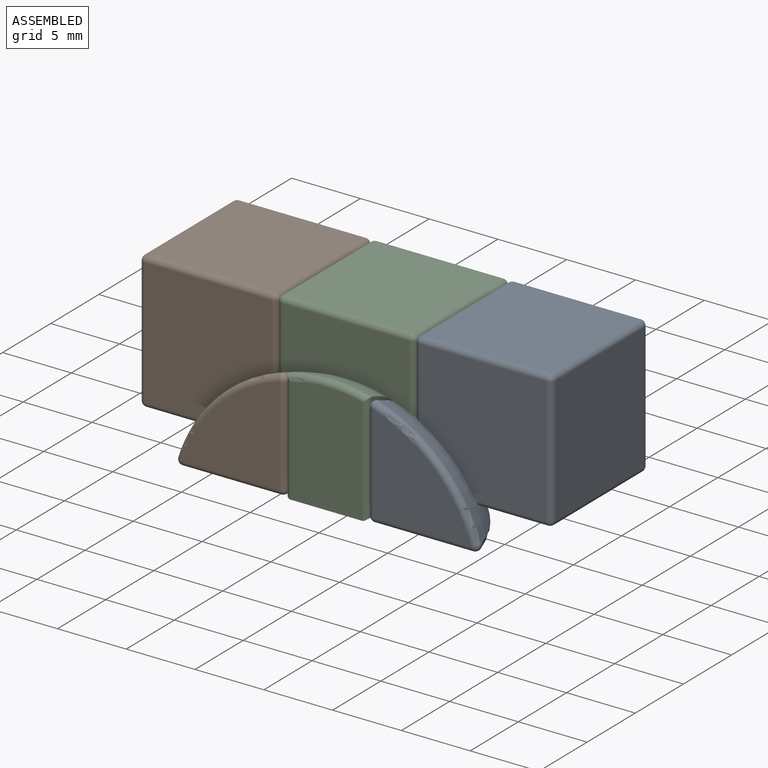
[diagram: assembled view]
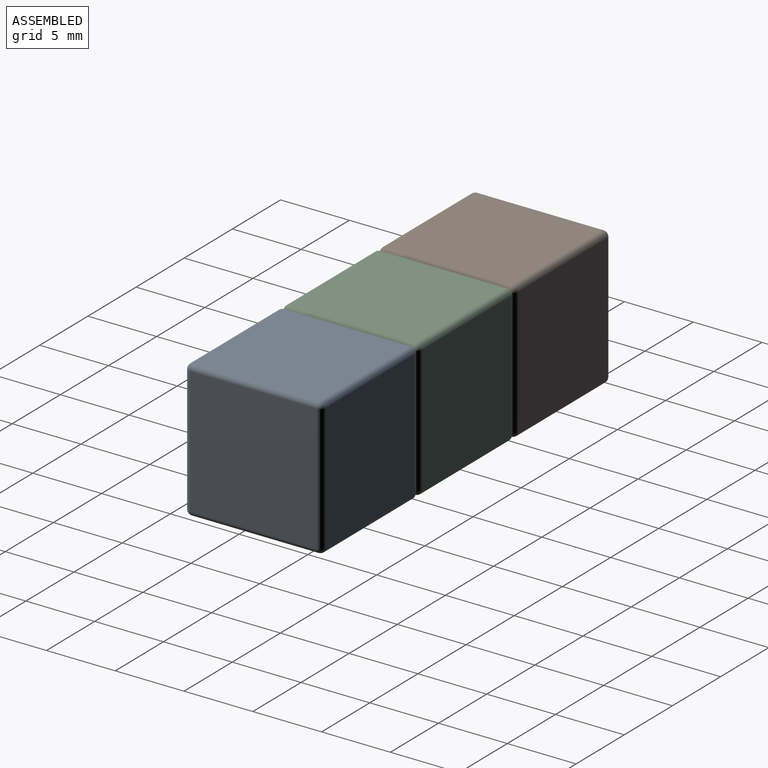
[diagram: assembled view, second angle]
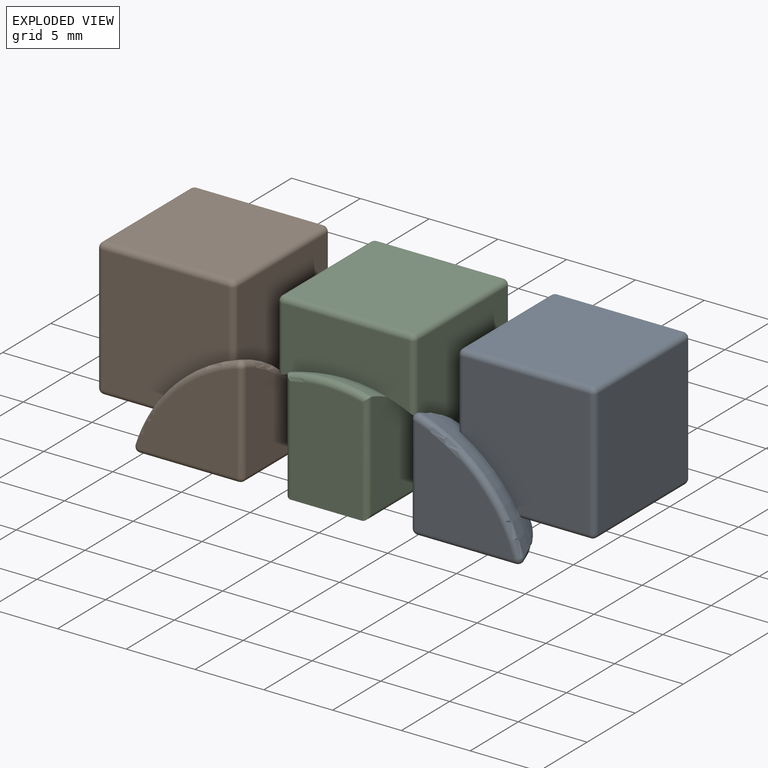
[diagram: exploded view]
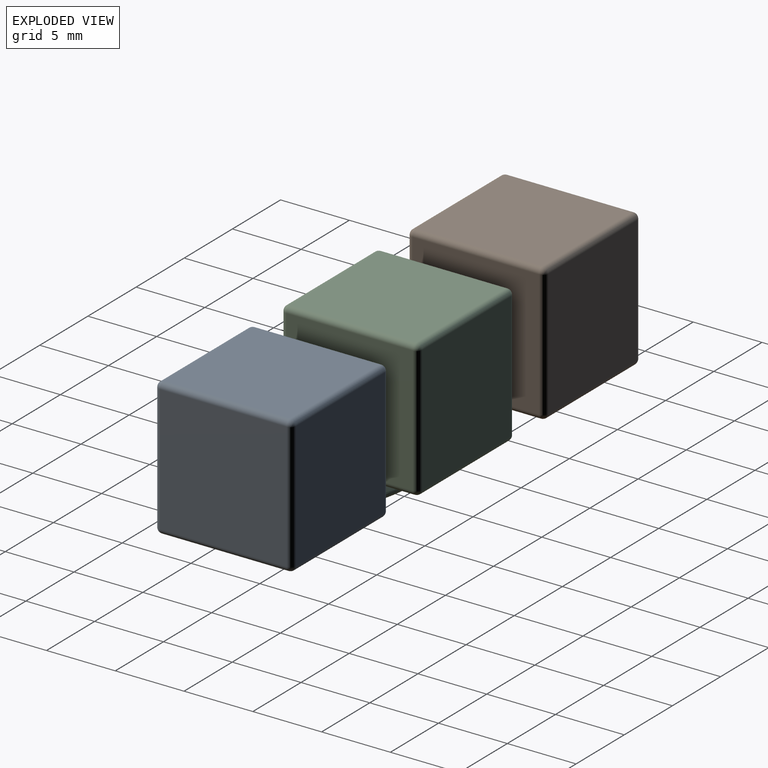
[diagram: exploded view, second angle]
ASSEMBLY  parts=3 mates=2
PART A: 39 faces, bbox 13.5x13.5x12 mm
  f0: sphere r=12mm, area 42.3mm2, adj f4,f5,f7,f14,f15,f19,f20,f25
  f1: plane 7.16x7.16mm, normal (0,0,-1), area 33.9mm2, adj f10,f15,f16
  f2: plane 9.2x9.2mm, normal (0,0,1), area 84.6mm2, adj f27,f32,f35,f38
  f3: plane 9.2x9.2mm, normal (-1,0,0), area 84.6mm2, adj f24,f33,f34,f38
  f4: plane 9.2x9.2mm, normal (0,0,-1), area 74.8mm2, adj f0,f20,f23,f24,f25
  f5: plane 9.2x9.2mm, normal (1,0,0), area 74.8mm2, adj f0,f20,f22,f26,f27
  f6: plane 9.2x9.2mm, normal (0,-1,0), area 84.6mm2, adj f22,f23,f32,f33
  f7: plane 9.2x9.2mm, normal (0,1,0), area 74.8mm2, adj f0,f25,f26,f34,f35
  f8: plane 7.16x7.16mm, normal (1,0,0), area 33.9mm2, adj f10,f13,f14
  f9: plane 7.16x7.16mm, normal (0,1,0), area 33.9mm2, adj f13,f16,f19
  f10: cylinder r=0.4mm len=7.16mm, axis (0,-1,0), area 4.5mm2, adj f1,f8,f11,f12
  f11: sphere r=0.4mm, area 0.4mm2, adj f10,f14,f15
  f12: sphere r=0.4mm, area 0.3mm2, adj f10,f13,f16
  f13: cylinder r=0.4mm len=7.16mm, axis (0,0,1), area 4.5mm2, adj f8,f9,f12,f17
  f14: torus R=11.09mm, axis (1,0,0), area 8.1mm2, adj f0,f8,f11,f17
  f15: torus R=11.09mm, axis (0,0,1), area 8.1mm2, adj f0,f1,f11,f18
  f16: cylinder r=0.4mm len=7.16mm, axis (1,0,0), area 4.5mm2, adj f1,f9,f12,f18
  f17: sphere r=0.4mm, area 0.4mm2, adj f13,f14,f19
  f18: sphere r=0.4mm, area 0.4mm2, adj f15,f16,f19
  f19: torus R=11.09mm, axis (0,-1,0), area 8.1mm2, adj f0,f9,f17,f18
  f20: cylinder r=0.4mm len=5.12mm, axis (0,-1,0), area 3.2mm2, adj f0,f4,f5,f21
  f21: sphere r=0.4mm, area 0.3mm2, adj f20,f22,f23
  f22: cylinder r=0.4mm len=9.2mm, axis (0,0,-1), area 5.8mm2, adj f5,f6,f21,f28
  f23: cylinder r=0.4mm len=9.2mm, axis (-1,0,0), area 5.8mm2, adj f4,f6,f21,f29
  f24: cylinder r=0.4mm len=9.2mm, axis (0,1,0), area 5.8mm2, adj f3,f4,f29,f30
  f25: cylinder r=0.4mm len=5.12mm, axis (1,0,0), area 3.2mm2, adj f0,f4,f7,f30
  f26: cylinder r=0.4mm len=5.12mm, axis (0,0,1), area 3.2mm2, adj f0,f5,f7,f31
  f27: cylinder r=0.4mm len=9.2mm, axis (0,1,0), area 5.8mm2, adj f2,f5,f28,f31
  f28: sphere r=0.4mm, area 0.3mm2, adj f22,f27,f32
  f29: sphere r=0.4mm, area 0.3mm2, adj f23,f24,f33
  f30: sphere r=0.4mm, area 0.3mm2, adj f24,f25,f34
  f31: sphere r=0.4mm, area 0.3mm2, adj f26,f27,f35
  f32: cylinder r=0.4mm len=9.2mm, axis (1,0,0), area 5.8mm2, adj f2,f6,f28,f36
  f33: cylinder r=0.4mm len=9.2mm, axis (0,0,1), area 5.8mm2, adj f3,f6,f29,f36
  f34: cylinder r=0.4mm len=9.2mm, axis (0,0,-1), area 5.8mm2, adj f3,f7,f30,f37
  f35: cylinder r=0.4mm len=9.2mm, axis (-1,0,0), area 5.8mm2, adj f2,f7,f31,f37
  f36: sphere r=0.4mm, area 0.3mm2, adj f32,f33,f38
  f37: sphere r=0.4mm, area 0.3mm2, adj f34,f35,f38
  f38: cylinder r=0.4mm len=9.2mm, axis (0,-1,0), area 5.8mm2, adj f2,f3,f36,f37
PART B: same geometry as A
PART C: 38 faces, bbox 12.3x14.8x12 mm
  f0: sphere r=12mm, area 9.6mm2, adj f2,f3,f8,f19
  f1: sphere r=12mm, area 9.7mm2, adj f2,f3,f9,f14
  f2: plane 7.71x7.71mm, normal (0,-1,0), area 39.7mm2, adj f0,f1,f13,f14,f16,f18,f19
  f3: plane 7.71x7.71mm, normal (0,1,0), area 39.7mm2, adj f0,f1,f6,f14,f15,f17,f19
  f4: plane 8.09x5.2mm, normal (0,0,-1), area 41.5mm2, adj f5,f14,f15,f16
  f5: plane 8.09x5.2mm, normal (-1,0,0), area 41.5mm2, adj f4,f17,f18,f19
  f6: sphere r=12mm, area 15.6mm2, adj f3,f8,f9,f12,f22,f23
  f7: plane 9.2x9.2mm, normal (0,0,1), area 84.6mm2, adj f24,f25,f31,f32
  f8: plane 9.21x4.72mm, normal (-1,0,0), area 37mm2, adj f0,f6,f13,f23,f31,f36,f37
  f9: plane 9.21x4.72mm, normal (0,0,-1), area 37mm2, adj f1,f6,f13,f22,f30,f35,f37
  f10: plane 9.2x9.2mm, normal (1,0,0), area 84.6mm2, adj f21,f25,f29,f30
  f11: plane 9.2x9.2mm, normal (0,-1,0), area 71mm2, adj f29,f32,f35,f36,f37
  f12: plane 9.2x9.2mm, normal (0,1,0), area 74.8mm2, adj f6,f21,f22,f23,f24
  f13: sphere r=12mm, area 11.5mm2, adj f2,f8,f9,f37
  f14: torus R=11.09mm, axis (0,0,1), area 4.3mm2, adj f1,f2,f3,f4,f15,f16
  f15: cylinder r=0.4mm len=8.09mm, axis (-1,0,0), area 4.9mm2, adj f3,f4,f14,f17
  f16: cylinder r=0.4mm len=8.09mm, axis (1,0,0), area 4.9mm2, adj f2,f4,f14,f18
  f17: cylinder r=0.4mm len=8.09mm, axis (0,0,1), area 4.9mm2, adj f3,f5,f15,f19
  f18: cylinder r=0.4mm len=8.09mm, axis (0,0,-1), area 4.9mm2, adj f2,f5,f16,f19
  f19: torus R=11.09mm, axis (1,0,0), area 4.3mm2, adj f0,f2,f3,f5,f17,f18
  f20: sphere r=0.4mm, area 0.3mm2, adj f21,f24,f25
  f21: cylinder r=0.4mm len=9.2mm, axis (0,0,1), area 5.8mm2, adj f10,f12,f20,f26
  f22: cylinder r=0.4mm len=5.12mm, axis (1,0,0), area 3.1mm2, adj f6,f9,f12,f26
  f23: cylinder r=0.4mm len=5.12mm, axis (0,0,-1), area 3.1mm2, adj f6,f8,f12,f27
  f24: cylinder r=0.4mm len=9.2mm, axis (-1,0,0), area 5.8mm2, adj f7,f12,f20,f27
  f25: cylinder r=0.4mm len=9.2mm, axis (0,1,0), area 5.8mm2, adj f7,f10,f20,f28
  f26: sphere r=0.4mm, area 0.3mm2, adj f21,f22,f30
  f27: sphere r=0.4mm, area 0.3mm2, adj f23,f24,f31
  f28: sphere r=0.4mm, area 0.3mm2, adj f25,f29,f32
  f29: cylinder r=0.4mm len=9.2mm, axis (0,0,-1), area 5.8mm2, adj f10,f11,f28,f33
  f30: cylinder r=0.4mm len=9.2mm, axis (0,-1,0), area 5.8mm2, adj f9,f10,f26,f33
  f31: cylinder r=0.4mm len=9.2mm, axis (0,-1,0), area 5.8mm2, adj f7,f8,f27,f34
  f32: cylinder r=0.4mm len=9.2mm, axis (1,0,0), area 5.8mm2, adj f7,f11,f28,f34
  f33: sphere r=0.4mm, area 0.3mm2, adj f29,f30,f35
  f34: sphere r=0.4mm, area 0.3mm2, adj f31,f32,f36
  f35: cylinder r=0.4mm len=4.67mm, axis (-1,0,0), area 2.9mm2, adj f9,f11,f33,f37
  f36: cylinder r=0.4mm len=4.67mm, axis (0,0,1), area 2.9mm2, adj f8,f11,f34,f37
  f37: torus R=11.52mm, axis (0,-1,0), area 5.5mm2, adj f8,f9,f11,f13,f35,f36
PLACE A rot(axis=(-0.58,0.58,0.58),120deg) t=(-5.83,-11.05,-0.68)mm
PLACE B rot(axis=(0.71,0,-0.71),180deg) t=(-5.83,-11.05,-0.68)mm
PLACE C rot(axis=(-0.58,-0.58,-0.58),120deg) t=(-5.83,-11.05,-0.68)mm
MATE fastened A.f7 <-> C.f12  axis (-1,0,0) through (-0.83,-1.05,14.32)mm
MATE fastened B.f4 <-> C.f11  axis (1,0,0) through (-10.83,-1.05,14.32)mm
